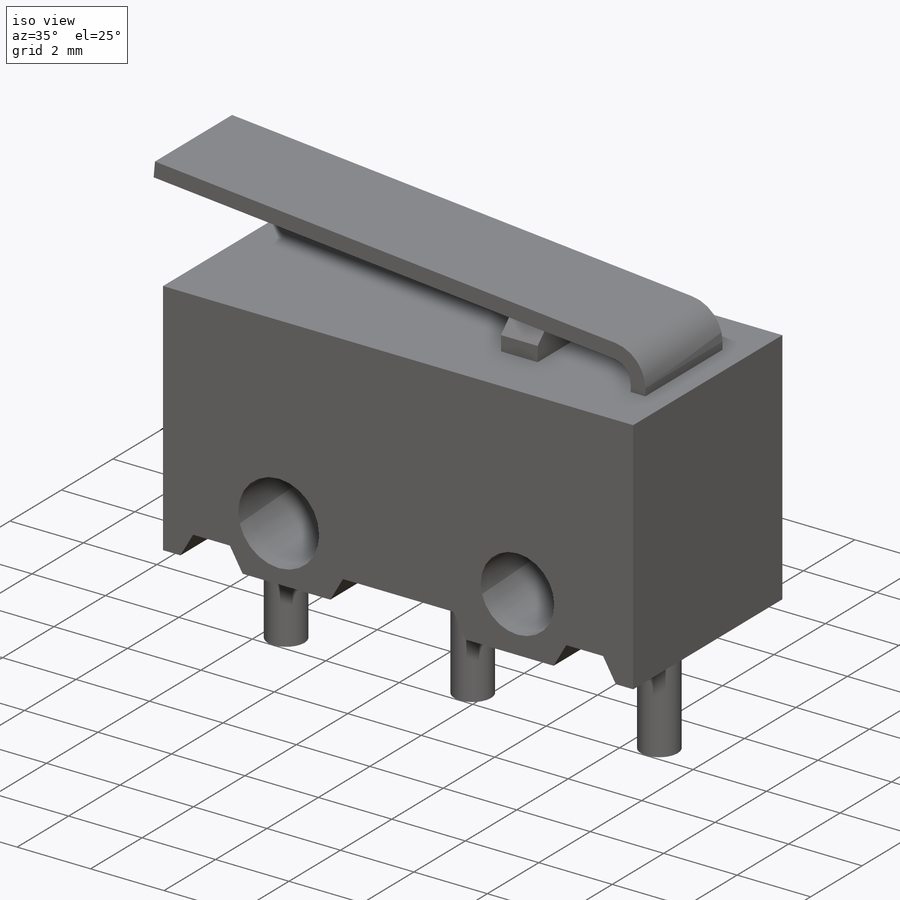
[diagram: iso view]
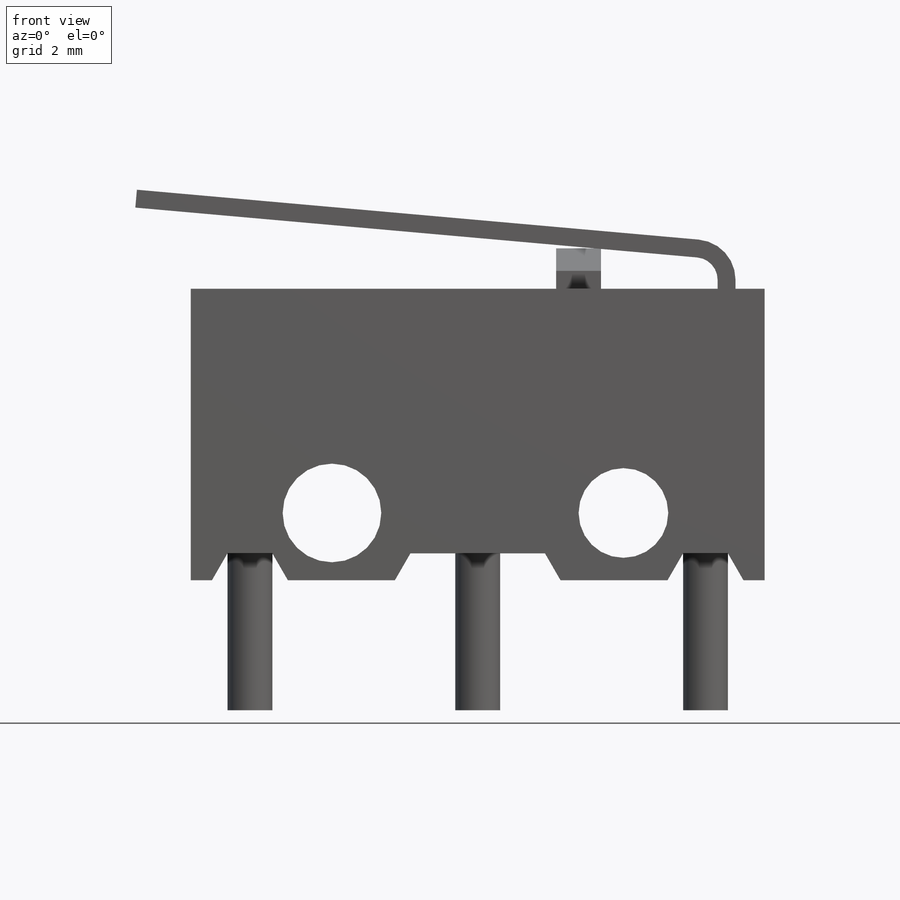
[diagram: front view]
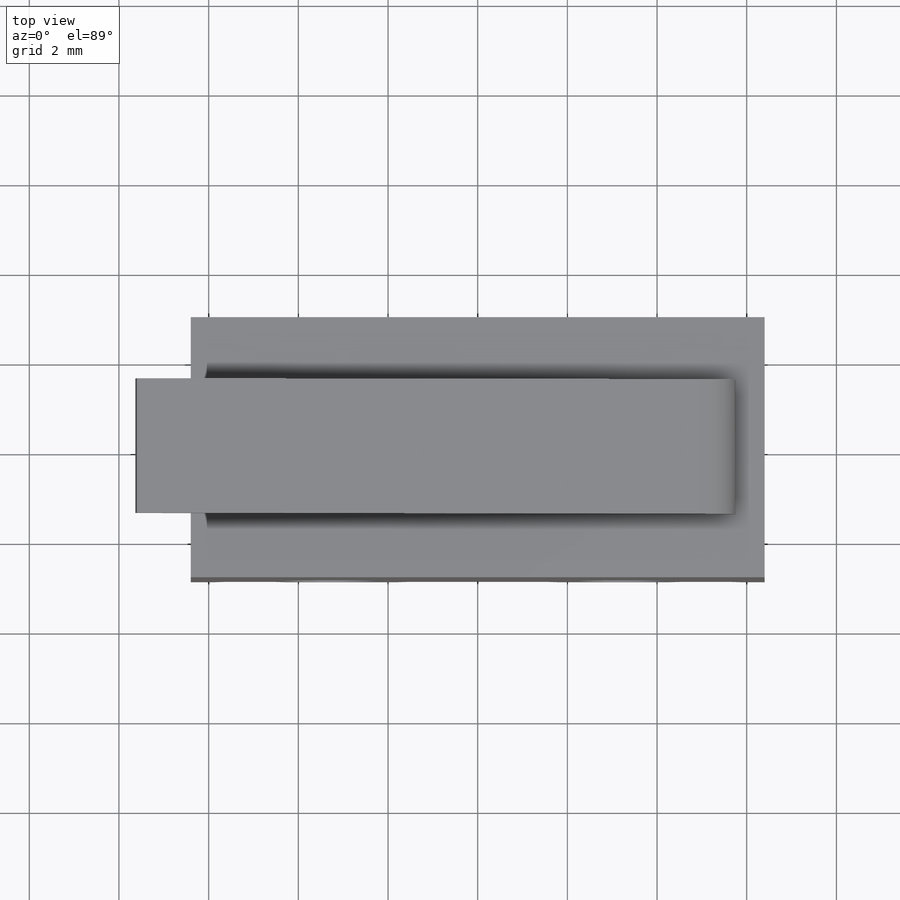
[diagram: top view]
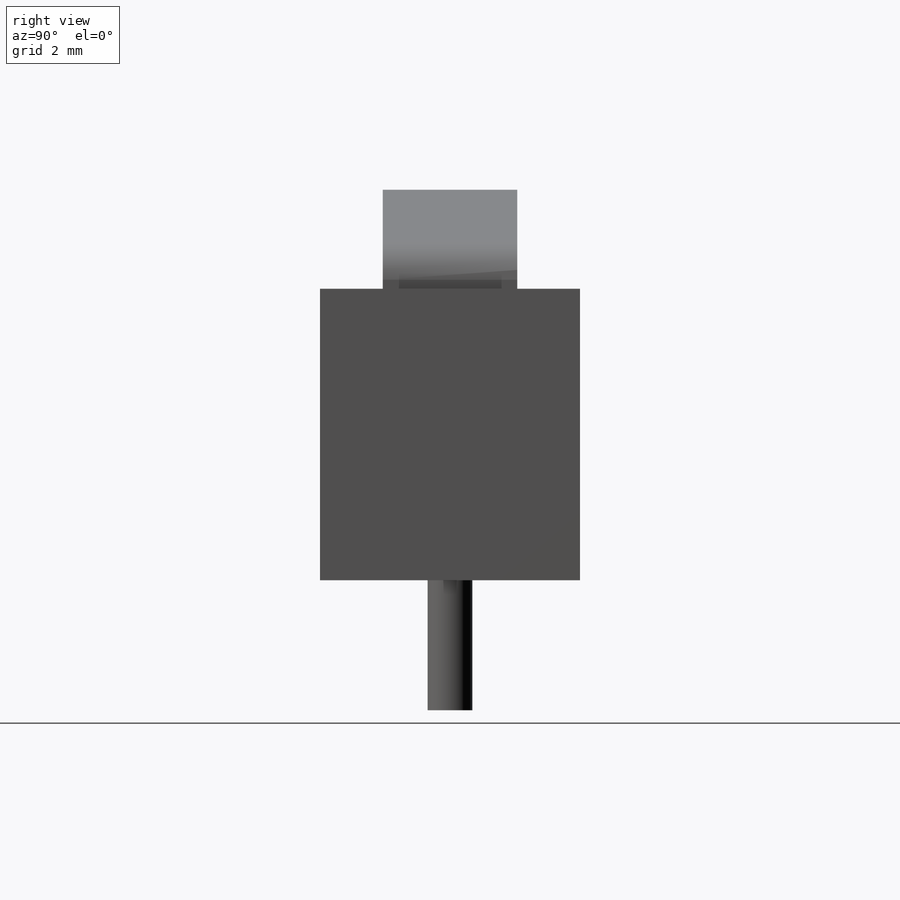
[diagram: right view]
SOLIDWORKS PART (.sldprt)
format: sldprt  version: not decoded by parser v0  size: 294,400 bytes
history: native  units: mm
features: sketch x6, extrude x4, material x1, cut_extrude x1, chamfer x1 (+12 scaffold rows collapsed)
feature tree (25):
  scaffold x12  (default folders/planes/origin — collapsed)
  material  "Material <not specified>"
  sketch  "Sketch1"  dims[c1.D3=2.0mm c1.D5=2.0mm c1.D6=2.2mm c1.D1=16.0mm c1.D2=12.8mm c2.D3=27.8mm c3.D3=270.0deg c3.D1=5.0mm c4.D3=1.5mm c4.D4=6.5mm]
  extrude  "Boss-Extrude1"  Depth=5.8mm
  sketch  "Sketch12"  dims[c1.D1=0.6mm c1.D2=0.6mm c2.D2=45.0deg c3.D2=2.5mm c3.D3=5.08mm c3.D4=1.0mm c4.D2=0.6mm c5.D2=60.0deg c5.D5=3.0mm]
  cut_extrude  "Cut-Extrude4"  [1 undecoded]
  sketch  "Sketch3"  dims[c1.D1=1.0mm c1.D2=2.6mm c1.D3=11.0mm c1.D4=2.9mm c2.D2=5.9mm c2.D3=5.0mm]
  extrude  "Boss-Extrude2"  Depth=2.8mm
  chamfer  "Chamfer1"  Distance=0.5mm Angle=45deg
  sketch  "Sketch13"  dims[c1.D2=~0.94742mm c1.D3=1.0mm c1.D4=1.0mm c1.D5=1.0mm c1.D1=5.08mm c2.D2=5.08mm]
  extrude  "Boss-Extrude9"  Depth=3.5mm
  sketch  "Sketch6"  dims[c1.D1=0.5mm c1.D2=0.5mm c1.D3=3.0mm c1.D4=23.8mm c2.D4=10.0deg c2.D5=10.5mm c2.D6=15.2mm c2.D7=~20.330902mm c3.D4=19.5mm c3.D1=0.9mm c3.D2=3.5mm c3.D3=5.08mm]
  sketch  "Sketch11"  dims[c1.D1=5.4mm c1.D4=3.1mm c2.D1=0.2mm c2.D3=0.5mm c2.D5=3.1mm c2.D6=0.1mm c2.D2=~1.756793mm c3.D2=~136.029523deg c3.D3=~9.756793mm c4.D3=110.0deg c4.D2=~2.133309mm c5.D2=120.0deg c5.D3=~9.756793mm c6.D3=110.0deg c6.D2=0.5mm c6.D7=8.5mm c6.D8=23.3mm c6.D9=~3.453014mm c6.D1=~0.649822mm c7.D2=0.2mm c7.D5=6.81mm c7.D6=4.35mm c7.D3=0.4mm c7.D4=0.4mm]
  extrude  "Boss-Extrude8"  Depth=3mm
decode coverage: 11 of 12 modeling features carry decoded parameters
note: ~ marks probable driven/reference dimensions
note: 1 parameter value undecoded
note: suppression state not decoded; provenance and decode notes live in map.json
